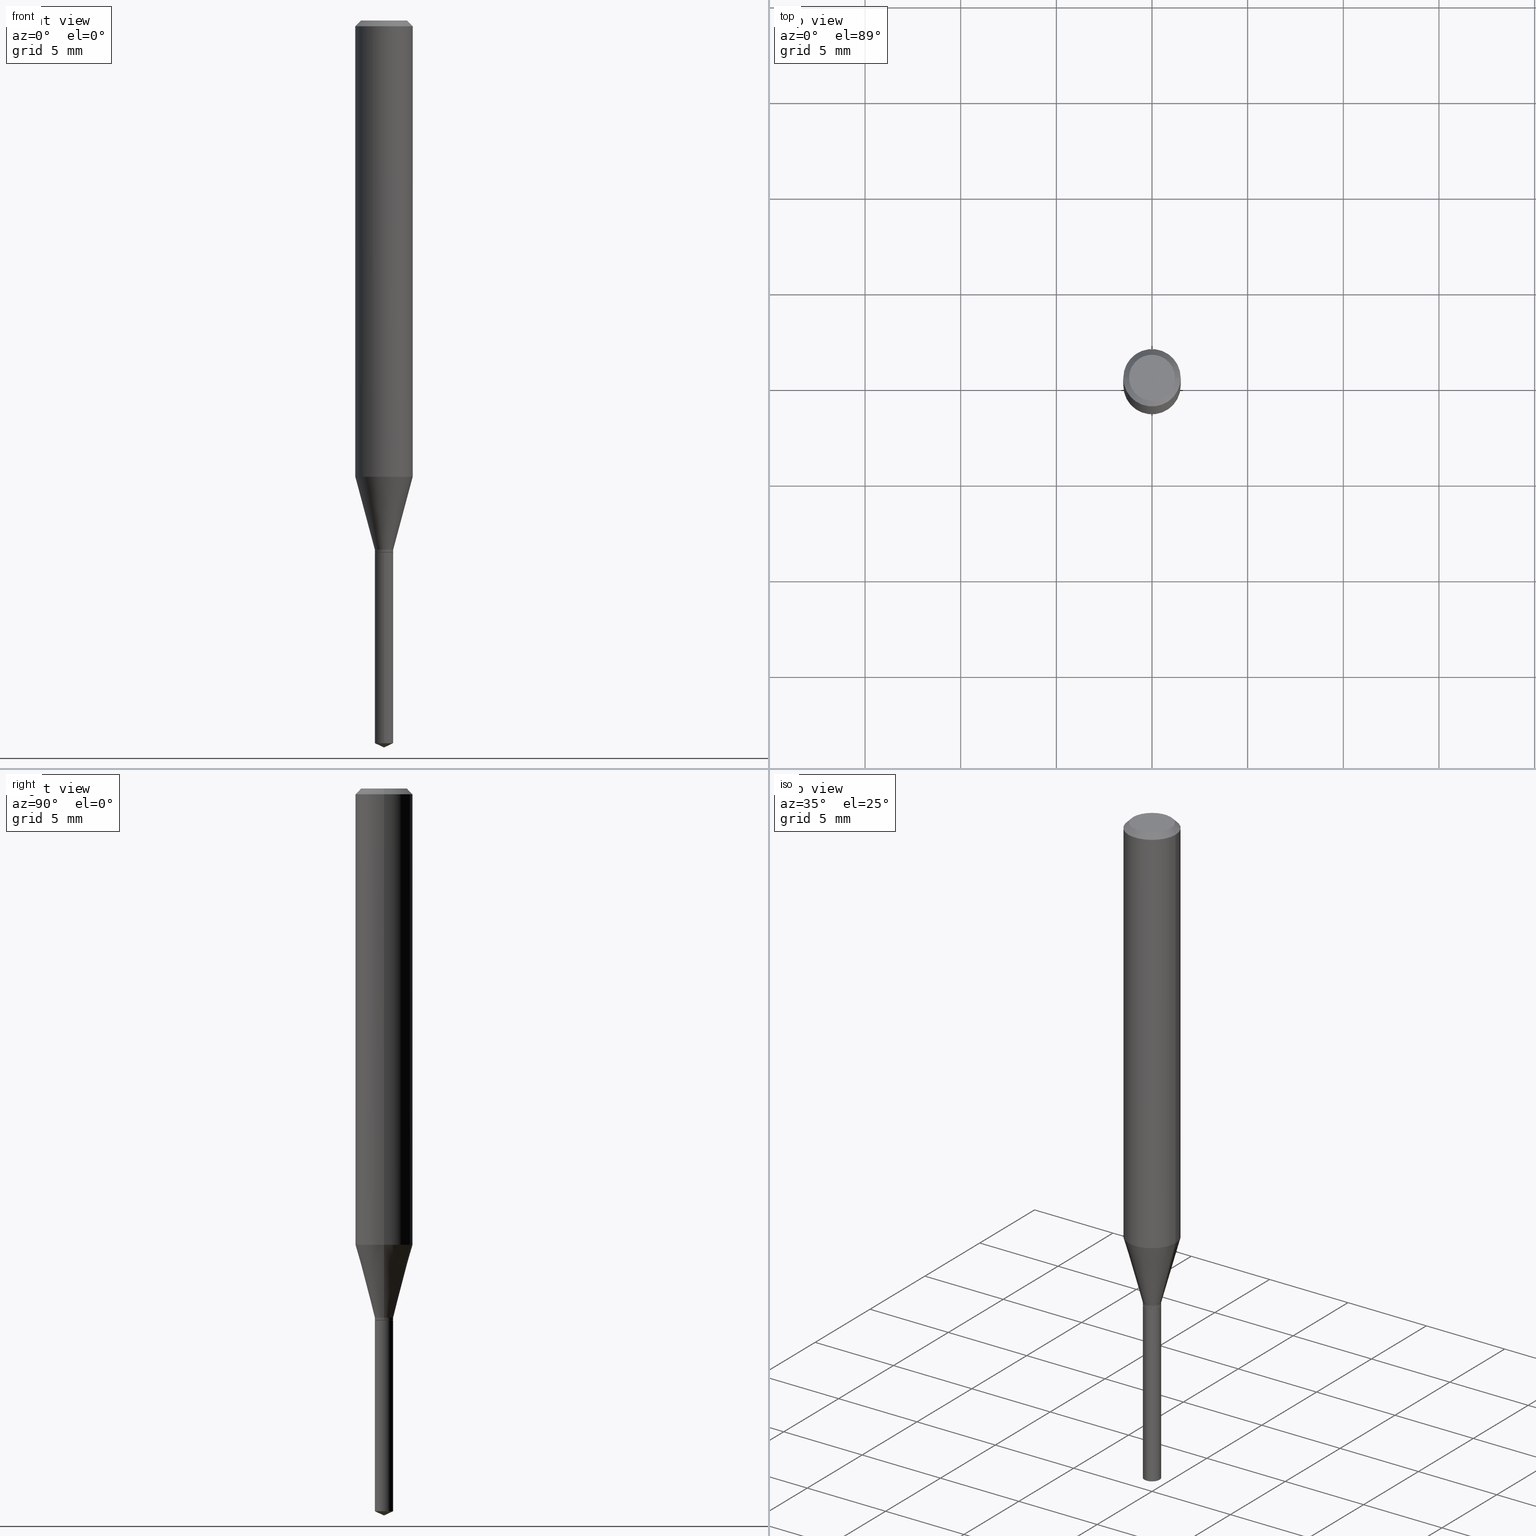
[diagram: canonical four-view strip — front | top / right | iso, engineering-drawing reading convention]
A machine part, canonical four-view strip (front | top / right | iso — engineering-drawing reading convention). The complete STEP part file that produces these views, byte-faithful:
ISO-10303-21;
HEADER;
FILE_DESCRIPTION (( 'STEP AP203' ),
    '1' );
FILE_NAME ('07820.STEP',
    '2024-04-24T03:45:57',
    ( '' ),
    ( '' ),
    'SwSTEP 2.0',
    'SolidWorks 2023',
    '' );
FILE_SCHEMA (( 'CONFIG_CONTROL_DESIGN' ));
ENDSEC;

DATA;
#1 = CALENDAR_DATE ( 2024, 23, 4 ) ;
#2 = DIRECTION ( 'NONE',  ( 0.7071067811864977237, -2.468850131081735624E-15, 0.7071067811865973107 ) ) ;
#3 = APPROVAL ( #76, 'UNSPECIFIED' ) ;
#4 = VERTEX_POINT ( 'NONE', #364 ) ;
#5 = CIRCLE ( 'NONE', #255, 0.01890000000000000013 ) ;
#6 = CC_DESIGN_SECURITY_CLASSIFICATION ( #319, ( #98 ) ) ;
#7 = CYLINDRICAL_SURFACE ( 'NONE', #142, 0.01890000000000000013 ) ;
#8 = ORIENTED_EDGE ( 'NONE', *, *, #340, .F. ) ;
#9 = ORIENTED_EDGE ( 'NONE', *, *, #317, .F. ) ;
#10 = CARTESIAN_POINT ( 'NONE',  ( 0.01839999999999999969, -3.949912838633250169E-15, -1.094499999999999806 ) ) ;
#11 = VECTOR ( 'NONE', #488, 39.37007874015748143 ) ;
#12 = AXIS2_PLACEMENT_3D ( 'NONE', #396, #56, #213 ) ;
#13 = EDGE_CURVE ( 'NONE', #293, #101, #422, .T. ) ;
#14 = CC_DESIGN_APPROVAL ( #3, ( #34 ) ) ;
#15 = VERTEX_POINT ( 'NONE', #177 ) ;
#16 = CYLINDRICAL_SURFACE ( 'NONE', #447, 0.05905000000000006077 ) ;
#17 = ORIENTED_EDGE ( 'NONE', *, *, #43, .T. ) ;
#18 = DIRECTION ( 'NONE',  ( 1.000000000000000000, -6.982962677686265922E-15, 4.876176775795935793E-29 ) ) ;
#19 = ORIENTED_EDGE ( 'NONE', *, *, #390, .T. ) ;
#20 = EDGE_CURVE ( 'NONE', #89, #130, #477, .T. ) ;
#21 = AXIS2_PLACEMENT_3D ( 'NONE', #61, #393, #248 ) ;
#22 = CARTESIAN_POINT ( 'NONE',  ( 3.658668015054778287E-29, -5.223602213574301462E-15, -1.496099999999999985 ) ) ;
#23 = ORIENTED_EDGE ( 'NONE', *, *, #184, .T. ) ;
#24 = ORIENTED_EDGE ( 'NONE', *, *, #451, .T. ) ;
#25 = EDGE_CURVE ( 'NONE', #134, #165, #483, .T. ) ;
#26 = DIMENSIONAL_EXPONENTS ( 1.000000000000000000, 0.000000000000000000, 0.000000000000000000, 0.000000000000000000, 0.000000000000000000, 0.000000000000000000, 0.000000000000000000 ) ;
#27 = ORIENTED_EDGE ( 'NONE', *, *, #322, .F. ) ;
#28 = DIRECTION ( 'NONE',  ( 2.445470214571801836E-29, -3.491479321953280158E-15, -1.000000000000000000 ) ) ;
#29 = AXIS2_PLACEMENT_3D ( 'NONE', #116, #197, #118 ) ;
#30 = DIRECTION ( 'NONE',  ( 2.445468806185136597E-29, -3.491481338843145583E-15, -1.000000000000000000 ) ) ;
#31 = CARTESIAN_POINT ( 'NONE',  ( 0.05905000000000006077, -4.123439461173744764E-16, 2.879382386107503023E-30 ) ) ;
#32 = LENGTH_MEASURE_WITH_UNIT ( LENGTH_MEASURE( 0.02539999999999999897 ), #414 );
#33 = CARTESIAN_POINT ( 'NONE',  ( 2.888098660104663328E-31, -4.123439461173779030E-17, -0.01181000000000006871 ) ) ;
#34 = PRODUCT_DEFINITION ( 'UNKNOWN', '', #98, #397 ) ;
#35 = PERSON_AND_ORGANIZATION ( #199, #205 ) ;
#36 = DATE_AND_TIME ( #411, #295 ) ;
#37 = FACE_OUTER_BOUND ( 'NONE', #362, .T. ) ;
#38 = CARTESIAN_POINT ( 'NONE',  ( 1.342925770586952237E-16, 0.01889999999999479943, -1.487286785260870436 ) ) ;
#39 = DATE_TIME_ROLE ( 'creation_date' ) ;
#40 = APPROVAL_PERSON_ORGANIZATION ( #35, #389, #66 ) ;
#41 = PLANE ( 'NONE',  #114 ) ;
#42 = LINE ( 'NONE', #347, #135 ) ;
#43 = EDGE_CURVE ( 'NONE', #168, #49, #5, .T. ) ;
#44 = DIRECTION ( 'NONE',  ( -2.445470214571802116E-29, 3.491479321953280158E-15, 1.000000000000000000 ) ) ;
#45 = CARTESIAN_POINT ( 'NONE',  ( 0.01889999999999996544, -3.951658579302670884E-15, -1.093999999999999861 ) ) ;
#46 = ORIENTED_EDGE ( 'NONE', *, *, #360, .T. ) ;
#47 = CONICAL_SURFACE ( 'NONE', #392, 0.01839999999999999969, 0.7853981633973778909 ) ;
#48 = DIRECTION ( 'NONE',  ( 1.000000000000000000, -6.982962677686258822E-15, 0.000000000000000000 ) ) ;
#49 = VERTEX_POINT ( 'NONE', #415 ) ;
#50 = ORIENTED_EDGE ( 'NONE', *, *, #20, .T. ) ;
#51 = EDGE_CURVE ( 'NONE', #15, #134, #151, .T. ) ;
#52 = ORIENTED_EDGE ( 'NONE', *, *, #429, .T. ) ;
#53 = ADVANCED_FACE ( 'NONE', ( #156 ), #161, .T. ) ;
#54 = DIRECTION ( 'NONE',  ( -0.7071067811865453523, 2.468850131082234184E-15, -0.7071067811865496822 ) ) ;
#55 = ORIENTED_EDGE ( 'NONE', *, *, #133, .F. ) ;
#56 = DIRECTION ( 'NONE',  ( -2.445468806185136597E-29, 3.491481338843145583E-15, 1.000000000000000000 ) ) ;
#57 = CIRCLE ( 'NONE', #432, 0.01889999999999996544 ) ;
#58 = DIRECTION ( 'NONE',  ( 1.000000000000000000, -6.982962677686258033E-15, 0.000000000000000000 ) ) ;
#59 = CIRCLE ( 'NONE', #70, 0.05905000000000011628 ) ;
#60 = ORIENTED_EDGE ( 'NONE', *, *, #204, .F. ) ;
#61 = CARTESIAN_POINT ( 'NONE',  ( 0.000000000000000000, 0.000000000000000000, 0.000000000000000000 ) ) ;
#62 = EDGE_LOOP ( 'NONE', ( #283, #275, #328, #243 ) ) ;
#63 = CC_DESIGN_PERSON_AND_ORGANIZATION_ASSIGNMENT ( #306, #195, ( #98 ) ) ;
#64 = DIRECTION ( 'NONE',  ( -2.445468806185136597E-29, 3.491481338843145583E-15, 1.000000000000000000 ) ) ;
#65 = CARTESIAN_POINT ( 'NONE',  ( 3.658664905062460986E-29, -5.223606628546217219E-15, -1.496099999999999985 ) ) ;
#66 = APPROVAL_ROLE ( '' ) ;
#67 = CARTESIAN_POINT ( 'NONE',  ( -0.05905000000000006077, 4.195754854663395916E-16, -2.904631170795524694E-30 ) ) ;
#68 = CIRCLE ( 'NONE', #455, 0.01890000000000000013 ) ;
#69 = CARTESIAN_POINT ( 'NONE',  ( 0.05904999999999999832, -4.535783407291118600E-16, -0.01181000000000006871 ) ) ;
#70 = AXIS2_PLACEMENT_3D ( 'NONE', #108, #144, #417 ) ;
#71 = APPROVAL_ROLE ( '' ) ;
#72 = EDGE_CURVE ( 'NONE', #174, #163, #57, .T. ) ;
#73 = MANIFOLD_SOLID_BREP ( 'Body-Move/Copy2[1]', #208 ) ;
#74 = CARTESIAN_POINT ( 'NONE',  ( 2.675342873966538993E-29, -3.819680584694400481E-15, -1.093999999999999861 ) ) ;
#75 = SHAPE_DEFINITION_REPRESENTATION ( #103, #413 ) ;
#76 = APPROVAL_STATUS ( 'not_yet_approved' ) ;
#77 = FACE_OUTER_BOUND ( 'NONE', #99, .T. ) ;
#78 = LINE ( 'NONE', #65, #460 ) ;
#79 = DIRECTION ( 'NONE',  ( -6.982962677686266711E-15, -1.000000000000000000, 3.520397390770498441E-15 ) ) ;
#80 = MANIFOLD_SOLID_BREP ( 'Body-Move/Copy2[2]', #383 ) ;
#81 = DIRECTION ( 'NONE',  ( 1.000000000000000000, -6.982962677686258033E-15, 0.000000000000000000 ) ) ;
#82 = CIRCLE ( 'NONE', #287, 0.05905000000000011628 ) ;
#83 = COORDINATED_UNIVERSAL_TIME_OFFSET ( 5, 0, .BEHIND. ) ;
#84 = APPLICATION_PROTOCOL_DEFINITION ( 'international standard', 'config_control_design', 1994, #463 ) ;
#85 = VECTOR ( 'NONE', #346, 39.37007874015748143 ) ;
#86 = PRODUCT_RELATED_PRODUCT_CATEGORY ( 'detail', '', ( #337 ) ) ;
#87 = DIRECTION ( 'NONE',  ( -1.000000000000000000, 6.982962677686265922E-15, -4.876176775795935793E-29 ) ) ;
#88 = ORIENTED_EDGE ( 'NONE', *, *, #110, .F. ) ;
#89 = VERTEX_POINT ( 'NONE', #452 ) ;
#90 = CIRCLE ( 'NONE', #182, 0.01890000000000000013 ) ;
#91 = LOCAL_TIME ( 23, 45, 57.00000000000000000, #147 ) ;
#92 = EDGE_CURVE ( 'NONE', #220, #165, #229, .T. ) ;
#93 = ORIENTED_EDGE ( 'NONE', *, *, #401, .F. ) ;
#94 = FACE_OUTER_BOUND ( 'NONE', #366, .T. ) ;
#95 = EDGE_LOOP ( 'NONE', ( #27, #126, #9 ) ) ;
#96 = AXIS2_PLACEMENT_3D ( 'NONE', #459, #388, #48 ) ;
#97 = ADVANCED_FACE ( 'NONE', ( #351 ), #318, .T. ) ;
#98 = PRODUCT_DEFINITION_FORMATION_WITH_SPECIFIED_SOURCE ( 'ANY', '', #337, .NOT_KNOWN. ) ;
#99 = EDGE_LOOP ( 'NONE', ( #439, #19, #181, #60 ) ) ;
#100 = DIRECTION ( 'NONE',  ( -2.445470214571802116E-29, 3.491479321953280158E-15, 1.000000000000000000 ) ) ;
#101 = VERTEX_POINT ( 'NONE', #190 ) ;
#102 = ORIENTED_EDGE ( 'NONE', *, *, #204, .T. ) ;
#103 = PRODUCT_DEFINITION_SHAPE ( 'NONE', 'NONE',  #34 ) ;
#104 = VERTEX_POINT ( 'NONE', #38 ) ;
#105 = CC_DESIGN_DATE_AND_TIME_ASSIGNMENT ( #421, #343, ( #319 ) ) ;
#106 = FACE_OUTER_BOUND ( 'NONE', #138, .T. ) ;
#107 = EDGE_LOOP ( 'NONE', ( #52, #24, #55, #438 ) ) ;
#108 = CARTESIAN_POINT ( 'NONE',  ( 2.296192890779115262E-29, -3.278354893860230512E-15, -0.9389581600761093272 ) ) ;
#109 = CARTESIAN_POINT ( 'NONE',  ( -0.01889999999999996891, -3.676310156154750318E-15, -1.093999999999999861 ) ) ;
#110 = EDGE_CURVE ( 'NONE', #130, #285, #454, .T. ) ;
#111 = CARTESIAN_POINT ( 'NONE',  ( 2.676565608369631794E-29, -3.821426325363822773E-15, -1.094499999999999806 ) ) ;
#112 = VECTOR ( 'NONE', #54, 39.37007874015748143 ) ;
#113 = DIRECTION ( 'NONE',  ( 2.438088387897960049E-29, -3.491481338843145188E-15, -1.000000000000000000 ) ) ;
#114 = AXIS2_PLACEMENT_3D ( 'NONE', #111, #28, #183 ) ;
#115 = APPROVAL_DATE_TIME ( #200, #389 ) ;
#116 = CARTESIAN_POINT ( 'NONE',  ( 0.000000000000000000, 0.000000000000000000, 0.000000000000000000 ) ) ;
#117 = CARTESIAN_POINT ( 'NONE',  ( -0.01889999999999996197, -3.676310156154750318E-15, -1.088799999999999768 ) ) ;
#118 = DIRECTION ( 'NONE',  ( 1.000000000000000000, -6.982962677686266711E-15, 4.876176775795935793E-29 ) ) ;
#119 = DIRECTION ( 'NONE',  ( 2.445468806185136597E-29, -3.491481338843145583E-15, -1.000000000000000000 ) ) ;
#120 = EDGE_CURVE ( 'NONE', #174, #89, #336, .T. ) ;
#121 = CARTESIAN_POINT ( 'NONE',  ( 2.888098660104663328E-31, -4.123439461173779030E-17, -0.01181000000000006871 ) ) ;
#122 = AXIS2_PLACEMENT_3D ( 'NONE', #461, #352, #456 ) ;
#123 = LOCAL_TIME ( 23, 45, 57.00000000000000000, #344 ) ;
#124 =( NAMED_UNIT ( * ) SI_UNIT ( $, .STERADIAN. ) SOLID_ANGLE_UNIT ( ) );
#125 = DIRECTION ( 'NONE',  ( -2.445468806185136597E-29, 3.491481338843145583E-15, 1.000000000000000000 ) ) ;
#126 = ORIENTED_EDGE ( 'NONE', *, *, #162, .T. ) ;
#127 = EDGE_CURVE ( 'NONE', #89, #220, #42, .T. ) ;
#128 = AXIS2_PLACEMENT_3D ( 'NONE', #308, #185, #481 ) ;
#129 = APPROVAL_PERSON_ORGANIZATION ( #159, #3, #71 ) ;
#130 = VERTEX_POINT ( 'NONE', #117 ) ;
#131 = CARTESIAN_POINT ( 'NONE',  ( 2.676565608369631794E-29, -3.821426325363822773E-15, -1.094499999999999806 ) ) ;
#132 = APPLICATION_PROTOCOL_DEFINITION ( 'international standard', 'config_control_design', 1994, #140 ) ;
#133 = EDGE_CURVE ( 'NONE', #165, #325, #216, .T. ) ;
#134 = VERTEX_POINT ( 'NONE', #385 ) ;
#135 = VECTOR ( 'NONE', #198, 39.37007874015747433 ) ;
#136 = AXIS2_PLACEMENT_3D ( 'NONE', #419, #379, #79 ) ;
#137 = ORIENTED_EDGE ( 'NONE', *, *, #25, .F. ) ;
#138 = EDGE_LOOP ( 'NONE', ( #462, #171, #394, #457 ) ) ;
#139 = EDGE_CURVE ( 'NONE', #104, #168, #187, .T. ) ;
#140 = APPLICATION_CONTEXT ( 'configuration controlled 3d designs of mechanical parts and assemblies' ) ;
#141 = EDGE_LOOP ( 'NONE', ( #219, #253, #249 ) ) ;
#142 = AXIS2_PLACEMENT_3D ( 'NONE', #131, #44, #313 ) ;
#143 = VECTOR ( 'NONE', #176, 39.37007874015748854 ) ;
#144 = DIRECTION ( 'NONE',  ( -2.445468806185136597E-29, 3.491481338843145583E-15, 1.000000000000000000 ) ) ;
#145 = ORIENTED_EDGE ( 'NONE', *, *, #233, .F. ) ;
#146 = DIRECTION ( 'NONE',  ( 1.000000000000000000, -6.982962677686266711E-15, 0.000000000000000000 ) ) ;
#147 = COORDINATED_UNIVERSAL_TIME_OFFSET ( 5, 0, .BEHIND. ) ;
#148 = FACE_OUTER_BOUND ( 'NONE', #141, .T. ) ;
#149 = CARTESIAN_POINT ( 'NONE',  ( 0.05904999999999999832, -4.463468013801466955E-16, -0.01181000000000006871 ) ) ;
#150 =( NAMED_UNIT ( * ) PLANE_ANGLE_UNIT ( ) SI_UNIT ( $, .RADIAN. ) );
#151 = CIRCLE ( 'NONE', #333, 0.04724000000000000421 ) ;
#152 = FACE_OUTER_BOUND ( 'NONE', #435, .T. ) ;
#153 = VECTOR ( 'NONE', #186, 39.37007874015748143 ) ;
#154 = APPROVAL_DATE_TIME ( #36, #196 ) ;
#155 = DIRECTION ( 'NONE',  ( -2.445468806185136597E-29, 3.491481338843145583E-15, 1.000000000000000000 ) ) ;
#156 = FACE_OUTER_BOUND ( 'NONE', #207, .T. ) ;
#157 = ADVANCED_FACE ( 'NONE', ( #152 ), #272, .T. ) ;
#158 = CARTESIAN_POINT ( 'NONE',  ( 2.662626436174376212E-29, -3.801524881732416844E-15, -1.088799999999999768 ) ) ;
#159 = PERSON_AND_ORGANIZATION ( #199, #205 ) ;
#160 = CARTESIAN_POINT ( 'NONE',  ( 2.676565608369631794E-29, -3.821426325363822773E-15, -1.094499999999999806 ) ) ;
#161 = CONICAL_SURFACE ( 'NONE', #409, 0.05904999999999999832, 0.7853981633974452814 ) ;
#162 = EDGE_CURVE ( 'NONE', #4, #355, #78, .T. ) ;
#163 = VERTEX_POINT ( 'NONE', #109 ) ;
#164 = DIRECTION ( 'NONE',  ( 1.000000000000000000, -6.982962677686270655E-15, 0.000000000000000000 ) ) ;
#165 = VERTEX_POINT ( 'NONE', #69 ) ;
#166 = AXIS2_PLACEMENT_3D ( 'NONE', #301, #113, #87 ) ;
#167 = ADVANCED_FACE ( 'NONE', ( #227 ), #378, .F. ) ;
#168 = VERTEX_POINT ( 'NONE', #464 ) ;
#169 = CARTESIAN_POINT ( 'NONE',  ( 0.000000000000000000, 0.000000000000000000, 0.000000000000000000 ) ) ;
#170 = DIRECTION ( 'NONE',  ( -2.438088387897960049E-29, 3.491481338843145188E-15, 1.000000000000000000 ) ) ;
#171 = ORIENTED_EDGE ( 'NONE', *, *, #370, .T. ) ;
#172 = CARTESIAN_POINT ( 'NONE',  ( -0.01839999999999999969, -3.688037234809853338E-15, -1.094499999999999806 ) ) ;
#173 = PERSON_AND_ORGANIZATION_ROLE ( 'classification_officer' ) ;
#174 = VERTEX_POINT ( 'NONE', #45 ) ;
#175 = AXIS2_PLACEMENT_3D ( 'NONE', #246, #170, #18 ) ;
#176 = DIRECTION ( 'NONE',  ( 6.439704144417014576E-15, 0.9063077870366501587, 0.4226182617406991082 ) ) ;
#177 = CARTESIAN_POINT ( 'NONE',  ( -0.04724000000000000421, 3.504923541997677355E-16, -3.380025165670481712E-19 ) ) ;
#178 = ADVANCED_FACE ( 'NONE', ( #316 ), #7, .T. ) ;
#179 = DIRECTION ( 'NONE',  ( -2.445468806185136597E-29, 3.491481338843145583E-15, 1.000000000000000000 ) ) ;
#180 = ORIENTED_EDGE ( 'NONE', *, *, #451, .F. ) ;
#181 = ORIENTED_EDGE ( 'NONE', *, *, #72, .F. ) ;
#182 = AXIS2_PLACEMENT_3D ( 'NONE', #289, #251, #395 ) ;
#183 = DIRECTION ( 'NONE',  ( 6.982962677686265922E-15, 1.000000000000000000, -3.491479321953280158E-15 ) ) ;
#184 = EDGE_CURVE ( 'NONE', #49, #168, #467, .T. ) ;
#185 = DIRECTION ( 'NONE',  ( -2.445470214571802116E-29, 3.491479321953280158E-15, 1.000000000000000000 ) ) ;
#186 = DIRECTION ( 'NONE',  ( -0.7071067811864977237, 7.493145998870174300E-15, 0.7071067811865973107 ) ) ;
#187 = LINE ( 'NONE', #490, #286 ) ;
#188 = DIRECTION ( 'NONE',  ( 1.000000000000000000, -6.982962677686270655E-15, 0.000000000000000000 ) ) ;
#189 = MECHANICAL_CONTEXT ( 'NONE', #140, 'mechanical' ) ;
#190 = CARTESIAN_POINT ( 'NONE',  ( 0.01839999999999999969, -3.949912838633250169E-15, -1.094499999999999806 ) ) ;
#191 = CARTESIAN_POINT ( 'NONE',  ( 2.676565608369631794E-29, -3.821426325363822773E-15, -1.094499999999999806 ) ) ;
#192 = AXIS2_PLACEMENT_3D ( 'NONE', #309, #304, #269 ) ;
#193 = DIRECTION ( 'NONE',  ( 0.7071067811865453523, -7.319954787623248157E-15, -0.7071067811865496822 ) ) ;
#194 = CIRCLE ( 'NONE', #485, 0.01889999999999996544 ) ;
#195 = PERSON_AND_ORGANIZATION_ROLE ( 'creator' ) ;
#196 = APPROVAL ( #381, 'UNSPECIFIED' ) ;
#197 = DIRECTION ( 'NONE',  ( -2.445468806185136597E-29, 3.491481338843145583E-15, 1.000000000000000000 ) ) ;
#198 = DIRECTION ( 'NONE',  ( 0.2588190451025214611, 1.565188264969621573E-15, 0.9659258262890682012 ) ) ;
#199 = PERSON ( 'UNSPECIFIED', 'UNSPECIFIED', 'UNSPECIFIED', ('UNSPECIFIED'), ('UNSPECIFIED'), ('UNSPECIFIED') ) ;
#200 = DATE_AND_TIME ( #410, #402 ) ;
#201 = PERSON_AND_ORGANIZATION ( #199, #205 ) ;
#202 = CARTESIAN_POINT ( 'NONE',  ( -1.319779946082436556E-16, -0.01890000000000382346, -1.094499999999999806 ) ) ;
#203 = VECTOR ( 'NONE', #193, 39.37007874015748143 ) ;
#204 = EDGE_CURVE ( 'NONE', #101, #174, #239, .T. ) ;
#205 = ORGANIZATION ( 'UNSPECIFIED', 'UNSPECIFIED', '' ) ;
#206 = ORIENTED_EDGE ( 'NONE', *, *, #250, .T. ) ;
#207 = EDGE_LOOP ( 'NONE', ( #93, #353, #434, #428 ) ) ;
#208 = CLOSED_SHELL ( 'NONE', ( #157, #465, #97, #178, #486 ) ) ;
#209 = CONICAL_SURFACE ( 'NONE', #136, 84.42940631927326933, 1.134464013796311121 ) ;
#210 = ORIENTED_EDGE ( 'NONE', *, *, #51, .T. ) ;
#211 = ORIENTED_EDGE ( 'NONE', *, *, #13, .T. ) ;
#212 = CARTESIAN_POINT ( 'NONE',  ( 2.888098660104663328E-31, -4.123439461173779030E-17, -0.01181000000000006871 ) ) ;
#213 = DIRECTION ( 'NONE',  ( 1.000000000000000000, -6.982962677686270655E-15, 0.000000000000000000 ) ) ;
#214 = CC_DESIGN_PERSON_AND_ORGANIZATION_ASSIGNMENT ( #234, #348, ( #98 ) ) ;
#215 = UNCERTAINTY_MEASURE_WITH_UNIT (LENGTH_MEASURE( 1.000000000000000082E-05 ), #341, 'distance_accuracy_value', 'NONE');
#216 = CIRCLE ( 'NONE', #484, 0.05904999999999999832 ) ;
#217 = AXIS2_PLACEMENT_3D ( 'NONE', #235, #267, #226 ) ;
#218 = DIRECTION ( 'NONE',  ( 1.000000000000000000, -6.982962677686266711E-15, 0.000000000000000000 ) ) ;
#219 = ORIENTED_EDGE ( 'NONE', *, *, #162, .F. ) ;
#220 = VERTEX_POINT ( 'NONE', #276 ) ;
#221 = EDGE_CURVE ( 'NONE', #101, #293, #391, .T. ) ;
#222 = DIRECTION ( 'NONE',  ( 1.000000000000000000, -6.982962677686258822E-15, 0.000000000000000000 ) ) ;
#223 = DIRECTION ( 'NONE',  ( 1.000000000000000000, -6.982962677686258822E-15, 0.000000000000000000 ) ) ;
#224 = VECTOR ( 'NONE', #2, 39.37007874015748143 ) ;
#225 = AXIS2_PLACEMENT_3D ( 'NONE', #368, #179, #222 ) ;
#226 = DIRECTION ( 'NONE',  ( 1.000000000000000000, -6.982962677686266711E-15, 4.876185090822587894E-29 ) ) ;
#227 = FACE_OUTER_BOUND ( 'NONE', #290, .T. ) ;
#228 = DIRECTION ( 'NONE',  ( -2.445468806185136597E-29, 3.491481338843145583E-15, 1.000000000000000000 ) ) ;
#229 = LINE ( 'NONE', #31, #11 ) ;
#230 = CALENDAR_DATE ( 2024, 23, 4 ) ;
#231 = CYLINDRICAL_SURFACE ( 'NONE', #29, 0.01889999999999996197 ) ;
#232 = CARTESIAN_POINT ( 'NONE',  ( 2.676565608369631794E-29, -3.821426325363822773E-15, -1.094499999999999806 ) ) ;
#233 = EDGE_CURVE ( 'NONE', #355, #49, #280, .T. ) ;
#234 = PERSON_AND_ORGANIZATION ( #199, #205 ) ;
#235 = CARTESIAN_POINT ( 'NONE',  ( 8.265746106709734507E-48, -1.180129479067563789E-33, -3.380025165646692144E-19 ) ) ;
#236 = AXIS2_PLACEMENT_3D ( 'NONE', #158, #480, #223 ) ;
#237 = VECTOR ( 'NONE', #374, 39.37007874015748143 ) ;
#238 = CARTESIAN_POINT ( 'NONE',  ( -0.01889999999999996197, -3.667232304673757710E-15, -1.088799999999999768 ) ) ;
#239 = LINE ( 'NONE', #10, #224 ) ;
#240 = ADVANCED_FACE ( 'NONE', ( #241 ), #311, .T. ) ;
#241 = FACE_OUTER_BOUND ( 'NONE', #297, .T. ) ;
#242 = DIRECTION ( 'NONE',  ( -2.445470214571802396E-29, 3.491479321953280158E-15, 1.000000000000000000 ) ) ;
#243 = ORIENTED_EDGE ( 'NONE', *, *, #43, .F. ) ;
#244 = ORIENTED_EDGE ( 'NONE', *, *, #110, .T. ) ;
#245 = EDGE_CURVE ( 'NONE', #355, #104, #68, .T. ) ;
#246 = CARTESIAN_POINT ( 'NONE',  ( 2.676565608369631794E-29, -3.821426325363822773E-15, -1.094499999999999806 ) ) ;
#247 = LOCAL_TIME ( 23, 45, 57.00000000000000000, #324 ) ;
#248 = DIRECTION ( 'NONE',  ( 1.000000000000000000, -6.982962677686266711E-15, 4.876176775795935793E-29 ) ) ;
#249 = ORIENTED_EDGE ( 'NONE', *, *, #245, .F. ) ;
#250 = EDGE_CURVE ( 'NONE', #325, #165, #354, .T. ) ;
#251 = DIRECTION ( 'NONE',  ( -2.445470214571802116E-29, 3.491479321953280158E-15, 1.000000000000000000 ) ) ;
#252 = ORIENTED_EDGE ( 'NONE', *, *, #360, .F. ) ;
#253 = ORIENTED_EDGE ( 'NONE', *, *, #322, .T. ) ;
#254 = DIRECTION ( 'NONE',  ( 0.000000000000000000, 0.000000000000000000, 1.000000000000000000 ) ) ;
#255 = AXIS2_PLACEMENT_3D ( 'NONE', #232, #380, #420 ) ;
#256 =( GEOMETRIC_REPRESENTATION_CONTEXT ( 3 ) GLOBAL_UNCERTAINTY_ASSIGNED_CONTEXT ( ( #215 ) ) GLOBAL_UNIT_ASSIGNED_CONTEXT ( ( #341, #150, #124 ) ) REPRESENTATION_CONTEXT ( 'NONE', 'WORKASPACE' ) );
#257 = DIRECTION ( 'NONE',  ( -2.445468806185136597E-29, 3.491481338843145583E-15, 1.000000000000000000 ) ) ;
#258 = ORIENTED_EDGE ( 'NONE', *, *, #92, .T. ) ;
#259 = CC_DESIGN_PERSON_AND_ORGANIZATION_ASSIGNMENT ( #201, #273, ( #337 ) ) ;
#260 = LINE ( 'NONE', #349, #85 ) ;
#261 = ORIENTED_EDGE ( 'NONE', *, *, #268, .T. ) ;
#262 = DIRECTION ( 'NONE',  ( -1.000000000000000000, 6.982962677686266711E-15, 0.000000000000000000 ) ) ;
#263 = COORDINATED_UNIVERSAL_TIME_OFFSET ( 5, 0, .BEHIND. ) ;
#264 = AXIS2_PLACEMENT_3D ( 'NONE', #160, #125, #164 ) ;
#265 = CIRCLE ( 'NONE', #225, 0.01889999999999996197 ) ;
#266 = DIRECTION ( 'NONE',  ( -2.445468806185136597E-29, 3.491481338843145583E-15, 1.000000000000000000 ) ) ;
#267 = DIRECTION ( 'NONE',  ( -2.445468806185136597E-29, 3.491481338843145583E-15, 1.000000000000000000 ) ) ;
#268 = EDGE_CURVE ( 'NONE', #15, #325, #398, .T. ) ;
#269 = DIRECTION ( 'NONE',  ( -6.982962677686265922E-15, -1.000000000000000000, 0.000000000000000000 ) ) ;
#270 = LINE ( 'NONE', #67, #345 ) ;
#271 = DIRECTION ( 'NONE',  ( -1.000000000000000000, 6.982962677686266711E-15, 0.000000000000000000 ) ) ;
#272 = CYLINDRICAL_SURFACE ( 'NONE', #192, 0.01890000000000000013 ) ;
#273 = PERSON_AND_ORGANIZATION_ROLE ( 'design_owner' ) ;
#274 = ADVANCED_FACE ( 'NONE', ( #329 ), #16, .T. ) ;
#275 = ORIENTED_EDGE ( 'NONE', *, *, #317, .T. ) ;
#276 = CARTESIAN_POINT ( 'NONE',  ( 0.05905000000000011628, -3.690698839977605827E-15, -0.9389581600761093272 ) ) ;
#277 = EDGE_LOOP ( 'NONE', ( #50, #244, #399, #431 ) ) ;
#278 = ORIENTED_EDGE ( 'NONE', *, *, #340, .T. ) ;
#279 = CONICAL_SURFACE ( 'NONE', #448, 0.05904999999999999832, 0.7853981633974452814 ) ;
#280 = LINE ( 'NONE', #202, #358 ) ;
#281 = ADVANCED_FACE ( 'NONE', ( #94 ), #403, .F. ) ;
#282 = CARTESIAN_POINT ( 'NONE',  ( 3.637113992402501246E-29, -5.192833264038655267E-15, -1.487286785260870436 ) ) ;
#283 = ORIENTED_EDGE ( 'NONE', *, *, #139, .F. ) ;
#284 = DIRECTION ( 'NONE',  ( -6.982962677686265922E-15, -1.000000000000000000, 0.000000000000000000 ) ) ;
#285 = VERTEX_POINT ( 'NONE', #363 ) ;
#286 = VECTOR ( 'NONE', #339, 39.37007874015748143 ) ;
#287 = AXIS2_PLACEMENT_3D ( 'NONE', #446, #335, #407 ) ;
#288 = ADVANCED_FACE ( 'NONE', ( #361 ), #433, .T. ) ;
#289 = CARTESIAN_POINT ( 'NONE',  ( 3.637113992402501246E-29, -5.192833264038655267E-15, -1.487286785260870436 ) ) ;
#290 = EDGE_LOOP ( 'NONE', ( #210, #387 ) ) ;
#291 = DIRECTION ( 'NONE',  ( 1.000000000000000000, -6.982962677686258822E-15, 0.000000000000000000 ) ) ;
#292 = ORIENTED_EDGE ( 'NONE', *, *, #390, .F. ) ;
#293 = VERTEX_POINT ( 'NONE', #172 ) ;
#294 = AXIS2_PLACEMENT_3D ( 'NONE', #191, #228, #188 ) ;
#295 = LOCAL_TIME ( 23, 45, 57.00000000000000000, #263 ) ;
#296 = DIRECTION ( 'NONE',  ( 1.000000000000000000, -6.982962677686266711E-15, 4.876176775795935793E-29 ) ) ;
#297 = EDGE_LOOP ( 'NONE', ( #88, #278, #404, #252 ) ) ;
#298 = DIRECTION ( 'NONE',  ( -6.328713451373358335E-15, -0.9063077870366470501, 0.4226182617407053255 ) ) ;
#299 = DATE_AND_TIME ( #230, #123 ) ;
#300 = FACE_OUTER_BOUND ( 'NONE', #425, .T. ) ;
#301 = CARTESIAN_POINT ( 'NONE',  ( 4.132873053354867254E-48, -5.900647395337818946E-34, -1.690012582823346072E-19 ) ) ;
#302 = PERSON_AND_ORGANIZATION ( #199, #205 ) ;
#303 = ADVANCED_FACE ( 'NONE', ( #323 ), #367, .T. ) ;
#304 = DIRECTION ( 'NONE',  ( -2.445470214571802116E-29, 3.491479321953280158E-15, 1.000000000000000000 ) ) ;
#305 = APPROVAL_STATUS ( 'not_yet_approved' ) ;
#306 = PERSON_AND_ORGANIZATION ( #199, #205 ) ;
#307 = DIRECTION ( 'NONE',  ( 1.000000000000000000, -6.982962677686270655E-15, 0.000000000000000000 ) ) ;
#308 = CARTESIAN_POINT ( 'NONE',  ( -9.261968845786000133E-28, 1.322362114038720264E-13, 37.87397874015748300 ) ) ;
#309 = CARTESIAN_POINT ( 'NONE',  ( 2.676565608369631794E-29, -3.821426325363822773E-15, -1.094499999999999806 ) ) ;
#310 = APPROVAL_DATE_TIME ( #453, #3 ) ;
#311 = CONICAL_SURFACE ( 'NONE', #96, 0.01889999999999996197, 0.2617993877991501295 ) ;
#312 = CC_DESIGN_APPROVAL ( #389, ( #319 ) ) ;
#313 = DIRECTION ( 'NONE',  ( -6.982962677686265922E-15, -1.000000000000000000, 0.000000000000000000 ) ) ;
#314 = ORIENTED_EDGE ( 'NONE', *, *, #245, .T. ) ;
#315 = PERSON_AND_ORGANIZATION ( #199, #205 ) ;
#316 = FACE_OUTER_BOUND ( 'NONE', #62, .T. ) ;
#317 = EDGE_CURVE ( 'NONE', #104, #355, #90, .T. ) ;
#318 = CONICAL_SURFACE ( 'NONE', #128, 84.42940631927326933, 1.134464013796311121 ) ;
#319 = SECURITY_CLASSIFICATION ( '', '', #489 ) ;
#320 = CARTESIAN_POINT ( 'NONE',  ( 0.000000000000000000, 0.000000000000000000, 0.000000000000000000 ) ) ;
#321 = ORIENTED_EDGE ( 'NONE', *, *, #370, .F. ) ;
#322 = EDGE_CURVE ( 'NONE', #4, #104, #365, .T. ) ;
#323 = FACE_OUTER_BOUND ( 'NONE', #277, .T. ) ;
#324 = COORDINATED_UNIVERSAL_TIME_OFFSET ( 5, 0, .BEHIND. ) ;
#325 = VERTEX_POINT ( 'NONE', #327 ) ;
#326 = AXIS2_PLACEMENT_3D ( 'NONE', #212, #257, #218 ) ;
#327 = CARTESIAN_POINT ( 'NONE',  ( -0.05904999999999999832, -1.240219158769643839E-15, -0.01181000000000006871 ) ) ;
#328 = ORIENTED_EDGE ( 'NONE', *, *, #233, .T. ) ;
#329 = FACE_OUTER_BOUND ( 'NONE', #107, .T. ) ;
#330 = EDGE_LOOP ( 'NONE', ( #180, #46, #258, #357 ) ) ;
#331 = EDGE_CURVE ( 'NONE', #163, #174, #194, .T. ) ;
#332 = EDGE_LOOP ( 'NONE', ( #321, #441, #475, #8 ) ) ;
#333 = AXIS2_PLACEMENT_3D ( 'NONE', #382, #449, #418 ) ;
#334 = CONICAL_SURFACE ( 'NONE', #294, 0.01839999999999999969, 0.7853981633973778909 ) ;
#335 = DIRECTION ( 'NONE',  ( -2.445468806185136597E-29, 3.491481338843145583E-15, 1.000000000000000000 ) ) ;
#336 = LINE ( 'NONE', #342, #237 ) ;
#337 = PRODUCT ( '07820', '07820', '', ( #189 ) ) ;
#338 = DIRECTION ( 'NONE',  ( -2.445468806185136877E-29, 3.491481338843145188E-15, 1.000000000000000000 ) ) ;
#339 = DIRECTION ( 'NONE',  ( -2.445470214571802396E-29, 3.491479321953280158E-15, 1.000000000000000000 ) ) ;
#340 = EDGE_CURVE ( 'NONE', #130, #89, #265, .T. ) ;
#341 =( CONVERSION_BASED_UNIT ( 'INCH', #32 ) LENGTH_UNIT ( ) NAMED_UNIT ( #26 ) );
#342 = CARTESIAN_POINT ( 'NONE',  ( 0.01889999999999996197, -1.319779946082701811E-16, 9.215974106254299703E-31 ) ) ;
#343 = DATE_TIME_ROLE ( 'classification_date' ) ;
#344 = COORDINATED_UNIVERSAL_TIME_OFFSET ( 5, 0, .BEHIND. ) ;
#345 = VECTOR ( 'NONE', #338, 39.37007874015748143 ) ;
#346 = DIRECTION ( 'NONE',  ( -2.445468806185136877E-29, 3.491481338843145188E-15, 1.000000000000000000 ) ) ;
#347 = CARTESIAN_POINT ( 'NONE',  ( 0.01889999999999996197, -3.933502876340686458E-15, -1.088799999999999768 ) ) ;
#348 = PERSON_AND_ORGANIZATION_ROLE ( 'design_supplier' ) ;
#349 = CARTESIAN_POINT ( 'NONE',  ( -0.01889999999999996197, 1.342925770586586649E-16, -9.296787320581754795E-31 ) ) ;
#350 = CC_DESIGN_PERSON_AND_ORGANIZATION_ASSIGNMENT ( #416, #445, ( #34 ) ) ;
#351 = FACE_OUTER_BOUND ( 'NONE', #95, .T. ) ;
#352 = DIRECTION ( 'NONE',  ( -2.445470214571802116E-29, 3.491479321953280158E-15, 1.000000000000000000 ) ) ;
#353 = ORIENTED_EDGE ( 'NONE', *, *, #25, .T. ) ;
#354 = CIRCLE ( 'NONE', #326, 0.05904999999999999832 ) ;
#355 = VERTEX_POINT ( 'NONE', #440 ) ;
#356 = ADVANCED_FACE ( 'NONE', ( #37 ), #334, .T. ) ;
#357 = ORIENTED_EDGE ( 'NONE', *, *, #250, .F. ) ;
#358 = VECTOR ( 'NONE', #242, 39.37007874015748143 ) ;
#359 = CIRCLE ( 'NONE', #217, 0.04724000000000000421 ) ;
#360 = EDGE_CURVE ( 'NONE', #285, #220, #82, .T. ) ;
#361 = FACE_OUTER_BOUND ( 'NONE', #332, .T. ) ;
#362 = EDGE_LOOP ( 'NONE', ( #292, #211, #102, #478 ) ) ;
#363 = CARTESIAN_POINT ( 'NONE',  ( -0.05905000000000011628, -2.858779408393891019E-15, -0.9389581600761093272 ) ) ;
#364 = CARTESIAN_POINT ( 'NONE',  ( 3.658667988020872822E-29, -5.223602213574301462E-15, -1.496099999999999985 ) ) ;
#365 = LINE ( 'NONE', #22, #143 ) ;
#366 = EDGE_LOOP ( 'NONE', ( #470, #372 ) ) ;
#367 = CONICAL_SURFACE ( 'NONE', #426, 0.01889999999999996197, 0.2617993877991501295 ) ;
#368 = CARTESIAN_POINT ( 'NONE',  ( 2.662626436174376212E-29, -3.801524881732416844E-15, -1.088799999999999768 ) ) ;
#369 = ORIENTED_EDGE ( 'NONE', *, *, #184, .F. ) ;
#370 = EDGE_CURVE ( 'NONE', #163, #130, #260, .T. ) ;
#371 = CARTESIAN_POINT ( 'NONE',  ( 2.662626436174376212E-29, -3.801524881732416844E-15, -1.088799999999999768 ) ) ;
#372 = ORIENTED_EDGE ( 'NONE', *, *, #13, .F. ) ;
#373 = CYLINDRICAL_SURFACE ( 'NONE', #423, 0.05905000000000006077 ) ;
#374 = DIRECTION ( 'NONE',  ( -2.445468806185136877E-29, 3.491481338843145188E-15, 1.000000000000000000 ) ) ;
#375 = CC_DESIGN_APPROVAL ( #196, ( #98 ) ) ;
#376 = FACE_OUTER_BOUND ( 'NONE', #330, .T. ) ;
#377 = ADVANCED_FACE ( 'NONE', ( #77 ), #47, .T. ) ;
#378 = PLANE ( 'NONE',  #166 ) ;
#379 = DIRECTION ( 'NONE',  ( -2.445470214571802116E-29, 3.491479321953280158E-15, 1.000000000000000000 ) ) ;
#380 = DIRECTION ( 'NONE',  ( -2.445470214571802116E-29, 3.491479321953280158E-15, 1.000000000000000000 ) ) ;
#381 = APPROVAL_STATUS ( 'not_yet_approved' ) ;
#382 = CARTESIAN_POINT ( 'NONE',  ( 8.265746106709734507E-48, -1.180129479067563789E-33, -3.380025165646692144E-19 ) ) ;
#383 = CLOSED_SHELL ( 'NONE', ( #377, #53, #274, #303, #436, #288, #240, #424, #442, #167, #281, #356 ) ) ;
#384 = CARTESIAN_POINT ( 'NONE',  ( 0.000000000000000000, 0.000000000000000000, 0.000000000000000000 ) ) ;
#385 = CARTESIAN_POINT ( 'NONE',  ( 0.04724000000000000421, -3.852183633974369345E-16, -3.380025165621689721E-19 ) ) ;
#386 = DIRECTION ( 'NONE',  ( 1.000000000000000000, 0.000000000000000000, 0.000000000000000000 ) ) ;
#387 = ORIENTED_EDGE ( 'NONE', *, *, #401, .T. ) ;
#388 = DIRECTION ( 'NONE',  ( -2.445468806185136597E-29, 3.491481338843145583E-15, 1.000000000000000000 ) ) ;
#389 = APPROVAL ( #305, 'UNSPECIFIED' ) ;
#390 = EDGE_CURVE ( 'NONE', #293, #163, #450, .T. ) ;
#391 = CIRCLE ( 'NONE', #264, 0.01839999999999999969 ) ;
#392 = AXIS2_PLACEMENT_3D ( 'NONE', #487, #155, #307 ) ;
#393 = DIRECTION ( 'NONE',  ( -2.445468806185136597E-29, 3.491481338843145583E-15, 1.000000000000000000 ) ) ;
#394 = ORIENTED_EDGE ( 'NONE', *, *, #20, .F. ) ;
#395 = DIRECTION ( 'NONE',  ( -6.982962677686265922E-15, -1.000000000000000000, 0.000000000000000000 ) ) ;
#396 = CARTESIAN_POINT ( 'NONE',  ( 2.676565608369631794E-29, -3.821426325363822773E-15, -1.094499999999999806 ) ) ;
#397 = DESIGN_CONTEXT ( 'detailed design', #463, 'design' ) ;
#398 = LINE ( 'NONE', #476, #112 ) ;
#399 = ORIENTED_EDGE ( 'NONE', *, *, #429, .F. ) ;
#400 = VECTOR ( 'NONE', #444, 39.37007874015747433 ) ;
#401 = EDGE_CURVE ( 'NONE', #134, #15, #359, .T. ) ;
#402 = LOCAL_TIME ( 23, 45, 57.00000000000000000, #83 ) ;
#403 = PLANE ( 'NONE',  #175 ) ;
#404 = ORIENTED_EDGE ( 'NONE', *, *, #127, .T. ) ;
#405 = FACE_OUTER_BOUND ( 'NONE', #406, .T. ) ;
#406 = EDGE_LOOP ( 'NONE', ( #137, #473, #261, #206 ) ) ;
#407 = DIRECTION ( 'NONE',  ( 1.000000000000000000, -6.982962677686266711E-15, 0.000000000000000000 ) ) ;
#408 = DIRECTION ( 'NONE',  ( -2.445468806185136597E-29, 3.491481338843145583E-15, 1.000000000000000000 ) ) ;
#409 = AXIS2_PLACEMENT_3D ( 'NONE', #33, #119, #271 ) ;
#410 = CALENDAR_DATE ( 2024, 23, 4 ) ;
#411 = CALENDAR_DATE ( 2024, 23, 4 ) ;
#412 = AXIS2_PLACEMENT_3D ( 'NONE', #169, #254, #386 ) ;
#413 = ADVANCED_BREP_SHAPE_REPRESENTATION ( '07820', ( #73, #80, #412 ), #256 ) ;
#414 =( LENGTH_UNIT ( ) NAMED_UNIT ( * ) SI_UNIT ( $, .METRE. ) );
#415 = CARTESIAN_POINT ( 'NONE',  ( -1.319779946082436556E-16, -0.01890000000000382346, -1.094499999999999806 ) ) ;
#416 = PERSON_AND_ORGANIZATION ( #199, #205 ) ;
#417 = DIRECTION ( 'NONE',  ( 1.000000000000000000, -6.982962677686266711E-15, 0.000000000000000000 ) ) ;
#418 = DIRECTION ( 'NONE',  ( 1.000000000000000000, -6.982962677686266711E-15, 4.876185090822587894E-29 ) ) ;
#419 = CARTESIAN_POINT ( 'NONE',  ( -9.261968845786000133E-28, 1.322362114038720264E-13, 37.87397874015748300 ) ) ;
#420 = DIRECTION ( 'NONE',  ( -6.982962677686265922E-15, -1.000000000000000000, 0.000000000000000000 ) ) ;
#421 = DATE_AND_TIME ( #469, #247 ) ;
#422 = CIRCLE ( 'NONE', #12, 0.01839999999999999969 ) ;
#423 = AXIS2_PLACEMENT_3D ( 'NONE', #384, #64, #296 ) ;
#424 = ADVANCED_FACE ( 'NONE', ( #376 ), #373, .T. ) ;
#425 = EDGE_LOOP ( 'NONE', ( #23, #17 ) ) ;
#426 = AXIS2_PLACEMENT_3D ( 'NONE', #371, #468, #291 ) ;
#427 = APPROVAL_PERSON_ORGANIZATION ( #302, #196, #482 ) ;
#428 = ORIENTED_EDGE ( 'NONE', *, *, #268, .F. ) ;
#429 = EDGE_CURVE ( 'NONE', #220, #285, #59, .T. ) ;
#430 = DIRECTION ( 'NONE',  ( -2.445468806185136597E-29, 3.491481338843145583E-15, 1.000000000000000000 ) ) ;
#431 = ORIENTED_EDGE ( 'NONE', *, *, #127, .F. ) ;
#432 = AXIS2_PLACEMENT_3D ( 'NONE', #74, #266, #81 ) ;
#433 = CYLINDRICAL_SURFACE ( 'NONE', #21, 0.01889999999999996197 ) ;
#434 = ORIENTED_EDGE ( 'NONE', *, *, #133, .T. ) ;
#435 = EDGE_LOOP ( 'NONE', ( #314, #466, #369, #145 ) ) ;
#436 = ADVANCED_FACE ( 'NONE', ( #106 ), #231, .T. ) ;
#437 = DIRECTION ( 'NONE',  ( -2.445468806185136597E-29, 3.491481338843145583E-15, 1.000000000000000000 ) ) ;
#438 = ORIENTED_EDGE ( 'NONE', *, *, #92, .F. ) ;
#439 = ORIENTED_EDGE ( 'NONE', *, *, #221, .T. ) ;
#440 = CARTESIAN_POINT ( 'NONE',  ( -1.319779946082340168E-16, -0.01890000000000518349, -1.487286785260870436 ) ) ;
#441 = ORIENTED_EDGE ( 'NONE', *, *, #331, .T. ) ;
#442 = ADVANCED_FACE ( 'NONE', ( #405 ), #279, .T. ) ;
#443 = CARTESIAN_POINT ( 'NONE',  ( -0.01839999999999999969, -3.690686461983964539E-15, -1.094499999999999806 ) ) ;
#444 = DIRECTION ( 'NONE',  ( -0.2588190451025214611, 5.211531920934551042E-15, 0.9659258262890682012 ) ) ;
#445 = PERSON_AND_ORGANIZATION_ROLE ( 'creator' ) ;
#446 = CARTESIAN_POINT ( 'NONE',  ( 2.296192890779115262E-29, -3.278354893860230512E-15, -0.9389581600761093272 ) ) ;
#447 = AXIS2_PLACEMENT_3D ( 'NONE', #320, #430, #474 ) ;
#448 = AXIS2_PLACEMENT_3D ( 'NONE', #479, #30, #262 ) ;
#449 = DIRECTION ( 'NONE',  ( -2.445468806185136597E-29, 3.491481338843145583E-15, 1.000000000000000000 ) ) ;
#450 = LINE ( 'NONE', #443, #153 ) ;
#451 = EDGE_CURVE ( 'NONE', #285, #325, #270, .T. ) ;
#452 = CARTESIAN_POINT ( 'NONE',  ( 0.01889999999999996197, -3.933502876340686458E-15, -1.088799999999999768 ) ) ;
#453 = DATE_AND_TIME ( #1, #91 ) ;
#454 = LINE ( 'NONE', #238, #400 ) ;
#455 = AXIS2_PLACEMENT_3D ( 'NONE', #282, #100, #284 ) ;
#456 = DIRECTION ( 'NONE',  ( -6.982962677686265922E-15, -1.000000000000000000, 0.000000000000000000 ) ) ;
#457 = ORIENTED_EDGE ( 'NONE', *, *, #120, .F. ) ;
#458 = CC_DESIGN_PERSON_AND_ORGANIZATION_ASSIGNMENT ( #315, #173, ( #319 ) ) ;
#459 = CARTESIAN_POINT ( 'NONE',  ( 2.662626436174376212E-29, -3.801524881732416844E-15, -1.088799999999999768 ) ) ;
#460 = VECTOR ( 'NONE', #298, 39.37007874015748854 ) ;
#461 = CARTESIAN_POINT ( 'NONE',  ( 2.676565608369631794E-29, -3.821426325363822773E-15, -1.094499999999999806 ) ) ;
#462 = ORIENTED_EDGE ( 'NONE', *, *, #72, .T. ) ;
#463 = APPLICATION_CONTEXT ( 'configuration controlled 3d designs of mechanical parts and assemblies' ) ;
#464 = CARTESIAN_POINT ( 'NONE',  ( 1.342925770586953716E-16, 0.01889999999999617680, -1.094499999999999806 ) ) ;
#465 = ADVANCED_FACE ( 'NONE', ( #148 ), #209, .T. ) ;
#466 = ORIENTED_EDGE ( 'NONE', *, *, #139, .T. ) ;
#467 = CIRCLE ( 'NONE', #122, 0.01890000000000000013 ) ;
#468 = DIRECTION ( 'NONE',  ( -2.445468806185136597E-29, 3.491481338843145583E-15, 1.000000000000000000 ) ) ;
#469 = CALENDAR_DATE ( 2024, 23, 4 ) ;
#470 = ORIENTED_EDGE ( 'NONE', *, *, #221, .F. ) ;
#471 = CC_DESIGN_DATE_AND_TIME_ASSIGNMENT ( #299, #39, ( #34 ) ) ;
#472 = CARTESIAN_POINT ( 'NONE',  ( 2.675342873966538993E-29, -3.819680584694400481E-15, -1.093999999999999861 ) ) ;
#473 = ORIENTED_EDGE ( 'NONE', *, *, #51, .F. ) ;
#474 = DIRECTION ( 'NONE',  ( 1.000000000000000000, -6.982962677686266711E-15, 4.876176775795935793E-29 ) ) ;
#475 = ORIENTED_EDGE ( 'NONE', *, *, #120, .T. ) ;
#476 = CARTESIAN_POINT ( 'NONE',  ( -0.05904999999999999832, 3.711095515056362547E-16, -0.01181000000000006871 ) ) ;
#477 = CIRCLE ( 'NONE', #236, 0.01889999999999996197 ) ;
#478 = ORIENTED_EDGE ( 'NONE', *, *, #331, .F. ) ;
#479 = CARTESIAN_POINT ( 'NONE',  ( 2.888098660104663328E-31, -4.123439461173779030E-17, -0.01181000000000006871 ) ) ;
#480 = DIRECTION ( 'NONE',  ( -2.445468806185136597E-29, 3.491481338843145583E-15, 1.000000000000000000 ) ) ;
#481 = DIRECTION ( 'NONE',  ( -6.982962677686266711E-15, -1.000000000000000000, 3.520397390770498441E-15 ) ) ;
#482 = APPROVAL_ROLE ( '' ) ;
#483 = LINE ( 'NONE', #149, #203 ) ;
#484 = AXIS2_PLACEMENT_3D ( 'NONE', #121, #408, #146 ) ;
#485 = AXIS2_PLACEMENT_3D ( 'NONE', #472, #437, #58 ) ;
#486 = ADVANCED_FACE ( 'NONE', ( #300 ), #41, .F. ) ;
#487 = CARTESIAN_POINT ( 'NONE',  ( 2.676565608369631794E-29, -3.821426325363822773E-15, -1.094499999999999806 ) ) ;
#488 = DIRECTION ( 'NONE',  ( -2.445468806185136877E-29, 3.491481338843145188E-15, 1.000000000000000000 ) ) ;
#489 = SECURITY_CLASSIFICATION_LEVEL ( 'unclassified' ) ;
#490 = CARTESIAN_POINT ( 'NONE',  ( 1.342925770586856834E-16, 0.01889999999999617680, -1.094499999999999806 ) ) ;
ENDSEC;
END-ISO-10303-21;
